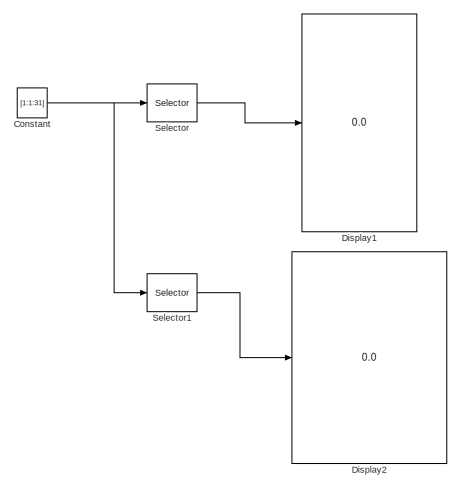
[diagram: root canvas - part 1/2, left side, full height]
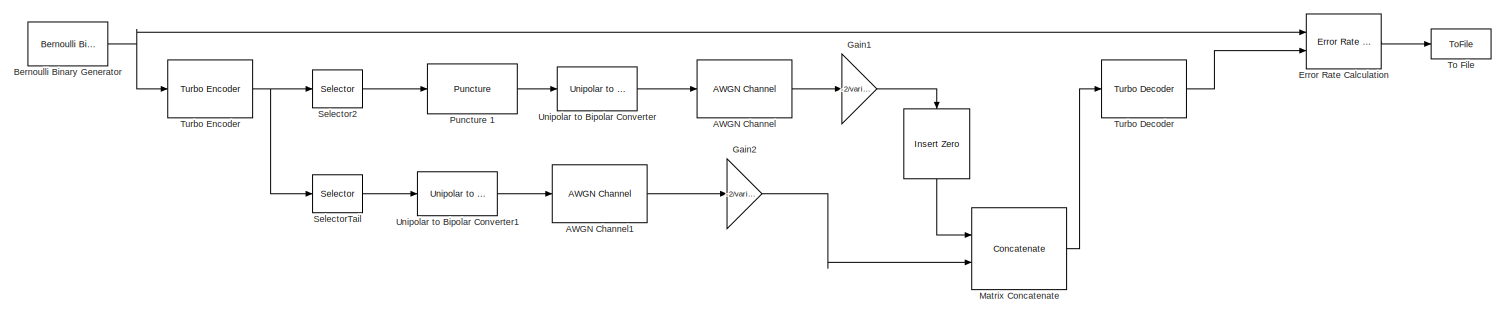
[diagram: root canvas - part 2/2, central region]
MODEL slx_9290083ec12d
KIND model
CONFIG AbsTol = auto
CONFIG EnableMultiTasking = off
CONFIG FixedStep = auto
CONFIG MaxStep = auto
CONFIG MinStep = auto
CONFIG RelTol = 1e-3
CONFIG SampleTimeConstraint = Unconstrained
CONFIG Solver = VariableStepAuto
CONFIG SolverName = VariableStepAuto
CONFIG StartTime = 0.0
CONFIG StopTime = 1
BLOCK [Reference]    REF=commsequence2/Insert Zero
  Ports = [1, 1]
  SourceBlock = commsequence2/Insert Zero
  SourceType = Insert Zero
BLOCK [Reference] AWGN Channel  REF=commchan3/AWGN
Channel
  Ports = [1, 1]
  SourceBlock = commchan3/AWGN\nChannel
  SourceType = AWGN Channel
  UserDataPersistent = on
BLOCK [Reference] AWGN Channel1  REF=commchan3/AWGN
Channel
  Ports = [1, 1]
  SourceBlock = commchan3/AWGN\nChannel
  SourceType = AWGN Channel
  UserDataPersistent = on
BLOCK [Reference] Bernoulli Binary Generator  REF=commrandsrc3/Bernoulli Binary
Generator
  Ports = [0, 1]
  SourceBlock = commrandsrc3/Bernoulli Binary\nGenerator
  SourceType = Bernoulli Binary Generator
BLOCK [Constant] Constant
  Commented = on
  Value = [1:1:31]
BLOCK [Display] Display1
  Commented = on
  Decimation = 1
  Ports = [1]
BLOCK [Display] Display2
  Commented = on
  Decimation = 1
  Ports = [1]
BLOCK [Reference] Error Rate Calculation  REF=commsink2/Error Rate
Calculation
  Ports = [2, 1]
  SourceBlock = commsink2/Error Rate\nCalculation
  SourceType = Error Rate Calculation
BLOCK [Gain] Gain1
  Gain = -2/variance
BLOCK [Gain] Gain2
  Gain = -2/variance
BLOCK [Concatenate] Matrix Concatenate
  ConcatenateDimension = 2
  Ports = [2, 1]
BLOCK [Reference] Puncture 1  REF=commsequence2/Puncture
  Ports = [1, 1]
  SourceBlock = commsequence2/Puncture
  SourceType = Puncture
BLOCK [Selector] Selector
  Commented = on
  IndexOptions = Starting index (dialog)
  Indices = 1
  InputPortWidth = 31
  OutputSizes = 15
  Ports = [1, 1]
BLOCK [Selector] Selector1
  Commented = on
  IndexOptions = Starting index (dialog)
  Indices = 16
  InputPortWidth = 31
  OutputSizes = 16
  Ports = [1, 1]
BLOCK [Selector] Selector2
  IndexOptions = Starting index (dialog)
  Indices = 1
  InputPortWidth = blockLen*7+32
  OutputSizes = blockLen*7
  Ports = [1, 1]
BLOCK [Selector] SelectorTail
  IndexOptions = Starting index (dialog)
  Indices = blockLen*7+1
  InputPortWidth = blockLen*7+32
  OutputSizes = 32
  Ports = [1, 1]
BLOCK [ToFile] To File
  Filename = ErrorVecSim.mat
  MatrixName = ErrorVecSim
  Ports = [1]
BLOCK [Reference] Turbo Decoder  REF=commcnvcod2/Turbo Decoder
  Ports = [1, 1]
  SourceBlock = commcnvcod2/Turbo Decoder
  SourceType = Turbo Decoder
BLOCK [Reference] Turbo Encoder  REF=commcnvcod2/Turbo Encoder
  Ports = [1, 1]
  SourceBlock = commcnvcod2/Turbo Encoder
  SourceType = Turbo Encoder
BLOCK [Reference] Unipolar to Bipolar Converter  REF=commutil2/Unipolar to
Bipolar
Converter
  Ports = [1, 1]
  SourceBlock = commutil2/Unipolar to\nBipolar\nConverter
  SourceType = Unipolar to Bipolar Converter
BLOCK [Reference] Unipolar to Bipolar Converter1  REF=commutil2/Unipolar to
Bipolar
Converter
  Ports = [1, 1]
  SourceBlock = commutil2/Unipolar to\nBipolar\nConverter
  SourceType = Unipolar to Bipolar Converter
LINE  :1 -> Matrix Concatenate:1
LINE AWGN Channel1:1 -> Gain2:1
LINE AWGN Channel:1 -> Gain1:1
NET Bernoulli Binary Generator:1 -> Error Rate Calculation:1, Turbo Encoder:1
NET Constant:1 -> Selector1:1, Selector:1
LINE Error Rate Calculation:1 -> To File:1
LINE Gain1:1 ->  :1
LINE Gain2:1 -> Matrix Concatenate:2
LINE Matrix Concatenate:1 -> Turbo Decoder:1
LINE Puncture 1:1 -> Unipolar to Bipolar Converter:1
LINE Selector1:1 -> Display2:1
LINE Selector2:1 -> Puncture 1:1
LINE Selector:1 -> Display1:1
LINE SelectorTail:1 -> Unipolar to Bipolar Converter1:1
LINE Turbo Decoder:1 -> Error Rate Calculation:2
NET Turbo Encoder:1 -> Selector2:1, SelectorTail:1
LINE Unipolar to Bipolar Converter1:1 -> AWGN Channel1:1
LINE Unipolar to Bipolar Converter:1 -> AWGN Channel:1
note: NET lines group one-source signal fan-out (src -> all destinations, sorted); 1:1 wires keep LINE
